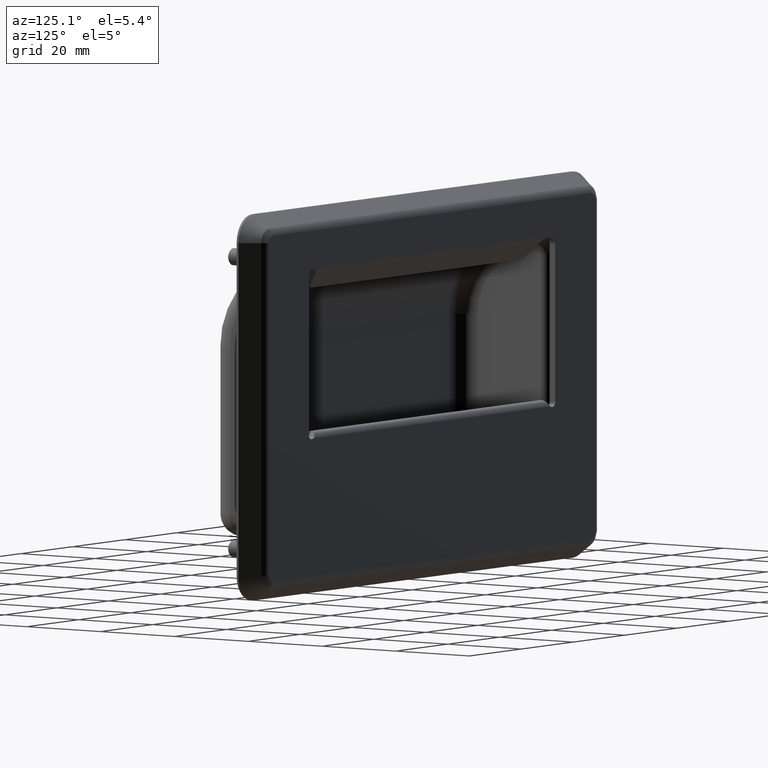
[diagram: clean part render]
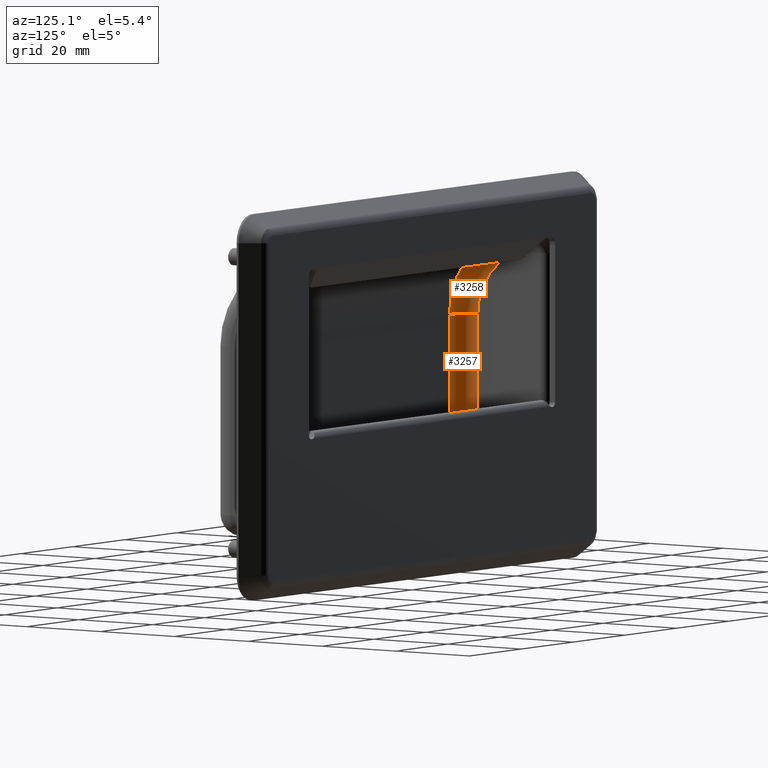
[diagram: same view with one multi-face feature highlighted, each face labeled with its STEP entity id]
A machine part, auxiliary view. The highlighted faces form ONE feature: a constant-radius fillet chain: 2 tangent blend faces with common blend radius 4.5 mm. The faces share edges in the B-rep.
Their STEP definitions:
[1] entity #3257 (Cylinder):
#442=FACE_OUTER_BOUND('',#666,.T.);
#666=EDGE_LOOP('',(#2939,#2940,#2941,#2942));
#922=LINE('',#7262,#1166);
#923=LINE('',#7263,#1167);
#1166=VECTOR('',#4359,37.5);
#1167=VECTOR('',#4360,37.5);
#1328=CIRCLE('',#3549,4.5);
#1331=CIRCLE('',#3555,4.5);
#1628=VERTEX_POINT('',#7249);
#1629=VERTEX_POINT('',#7250);
#1630=VERTEX_POINT('',#7259);
#1631=VERTEX_POINT('',#7260);
#2073=EDGE_CURVE('',#1628,#1629,#1328,.F.);
#2078=EDGE_CURVE('',#1630,#1631,#1331,.T.);
#2079=EDGE_CURVE('',#1631,#1628,#922,.T.);
#2080=EDGE_CURVE('',#1629,#1630,#923,.T.);
#2939=ORIENTED_EDGE('',*,*,#2078,.T.);
#2940=ORIENTED_EDGE('',*,*,#2079,.T.);
#2941=ORIENTED_EDGE('',*,*,#2073,.T.);
#2942=ORIENTED_EDGE('',*,*,#2080,.T.);
#3074=CYLINDRICAL_SURFACE('',#3554,4.5);
#3257=ADVANCED_FACE('',(#442),#3074,.F.);
#3549=AXIS2_PLACEMENT_3D('',#7251,#4343,#4344);
#3554=AXIS2_PLACEMENT_3D('',#7258,#4355,#4356);
#3555=AXIS2_PLACEMENT_3D('',#7261,#4357,#4358);
#4343=DIRECTION('center_axis',(0.,0.,1.));
#4344=DIRECTION('ref_axis',(0.,-1.,0.));
#4355=DIRECTION('center_axis',(0.,-1.05735526154777E-16,1.));
#4356=DIRECTION('ref_axis',(-0.707106781186548,-0.707106781186547,-7.47663075563703E-17));
#4357=DIRECTION('center_axis',(0.,0.,1.));
#4358=DIRECTION('ref_axis',(-1.,0.,0.));
#4359=DIRECTION('',(0.,1.05735526154777E-16,-1.));
#4360=DIRECTION('',(0.,-1.05735526154777E-16,1.));
#7249=CARTESIAN_POINT('',(-43.,-23.5,-26.));
#7250=CARTESIAN_POINT('',(-47.5,-19.,-26.));
#7251=CARTESIAN_POINT('Origin',(-43.,-19.,-26.));
#7258=CARTESIAN_POINT('Origin',(-43.,-19.,5.75));
#7259=CARTESIAN_POINT('',(-47.5,-19.,11.5));
#7260=CARTESIAN_POINT('',(-43.,-23.5,11.5));
#7261=CARTESIAN_POINT('Origin',(-43.,-19.,11.5));
#7262=CARTESIAN_POINT('',(-43.,-23.5,5.75));
#7263=CARTESIAN_POINT('',(-47.5,-19.,5.75));
[2] entity #3258 (Torus):
#32=TOROIDAL_SURFACE('',#3556,14.5,4.5);
#443=FACE_OUTER_BOUND('',#667,.T.);
#667=EDGE_LOOP('',(#2943,#2944,#2945,#2946));
#1331=CIRCLE('',#3555,4.5);
#1332=CIRCLE('',#3557,4.5);
#1333=CIRCLE('',#3558,19.);
#1334=CIRCLE('',#3559,14.5);
#1630=VERTEX_POINT('',#7259);
#1631=VERTEX_POINT('',#7260);
#1632=VERTEX_POINT('',#7265);
#1633=VERTEX_POINT('',#7266);
#2078=EDGE_CURVE('',#1630,#1631,#1331,.T.);
#2081=EDGE_CURVE('',#1632,#1633,#1332,.T.);
#2082=EDGE_CURVE('',#1633,#1631,#1333,.T.);
#2083=EDGE_CURVE('',#1630,#1632,#1334,.T.);
#2943=ORIENTED_EDGE('',*,*,#2081,.T.);
#2944=ORIENTED_EDGE('',*,*,#2082,.T.);
#2945=ORIENTED_EDGE('',*,*,#2078,.F.);
#2946=ORIENTED_EDGE('',*,*,#2083,.T.);
#3258=ADVANCED_FACE('',(#443),#32,.F.);
#3555=AXIS2_PLACEMENT_3D('',#7261,#4357,#4358);
#3556=AXIS2_PLACEMENT_3D('',#7264,#4361,#4362);
#3557=AXIS2_PLACEMENT_3D('',#7267,#4363,#4364);
#3558=AXIS2_PLACEMENT_3D('',#7268,#4365,#4366);
#3559=AXIS2_PLACEMENT_3D('',#7269,#4367,#4368);
#4357=DIRECTION('center_axis',(0.,0.,1.));
#4358=DIRECTION('ref_axis',(-1.,0.,0.));
#4361=DIRECTION('center_axis',(-1.,0.,0.));
#4362=DIRECTION('ref_axis',(0.,0.,1.));
#4363=DIRECTION('center_axis',(0.,1.,-2.46716227694479E-16));
#4364=DIRECTION('ref_axis',(-1.,0.,0.));
#4365=DIRECTION('center_axis',(1.,0.,0.));
#4366=DIRECTION('ref_axis',(0.,-0.707106781186548,0.707106781186547));
#4367=DIRECTION('center_axis',(-1.,0.,0.));
#4368=DIRECTION('ref_axis',(0.,-0.707106781186548,0.707106781186547));
#7259=CARTESIAN_POINT('',(-47.5,-19.,11.5));
#7260=CARTESIAN_POINT('',(-43.,-23.5,11.5));
#7261=CARTESIAN_POINT('Origin',(-43.,-19.,11.5));
#7264=CARTESIAN_POINT('Origin',(-43.,-4.5,11.5));
#7265=CARTESIAN_POINT('',(-47.5,-4.50000000000001,26.));
#7266=CARTESIAN_POINT('',(-43.,-4.5,30.5));
#7267=CARTESIAN_POINT('Origin',(-43.,-4.50000000000001,26.));
#7268=CARTESIAN_POINT('Origin',(-43.,-4.5,11.5));
#7269=CARTESIAN_POINT('Origin',(-47.5,-4.5,11.5));